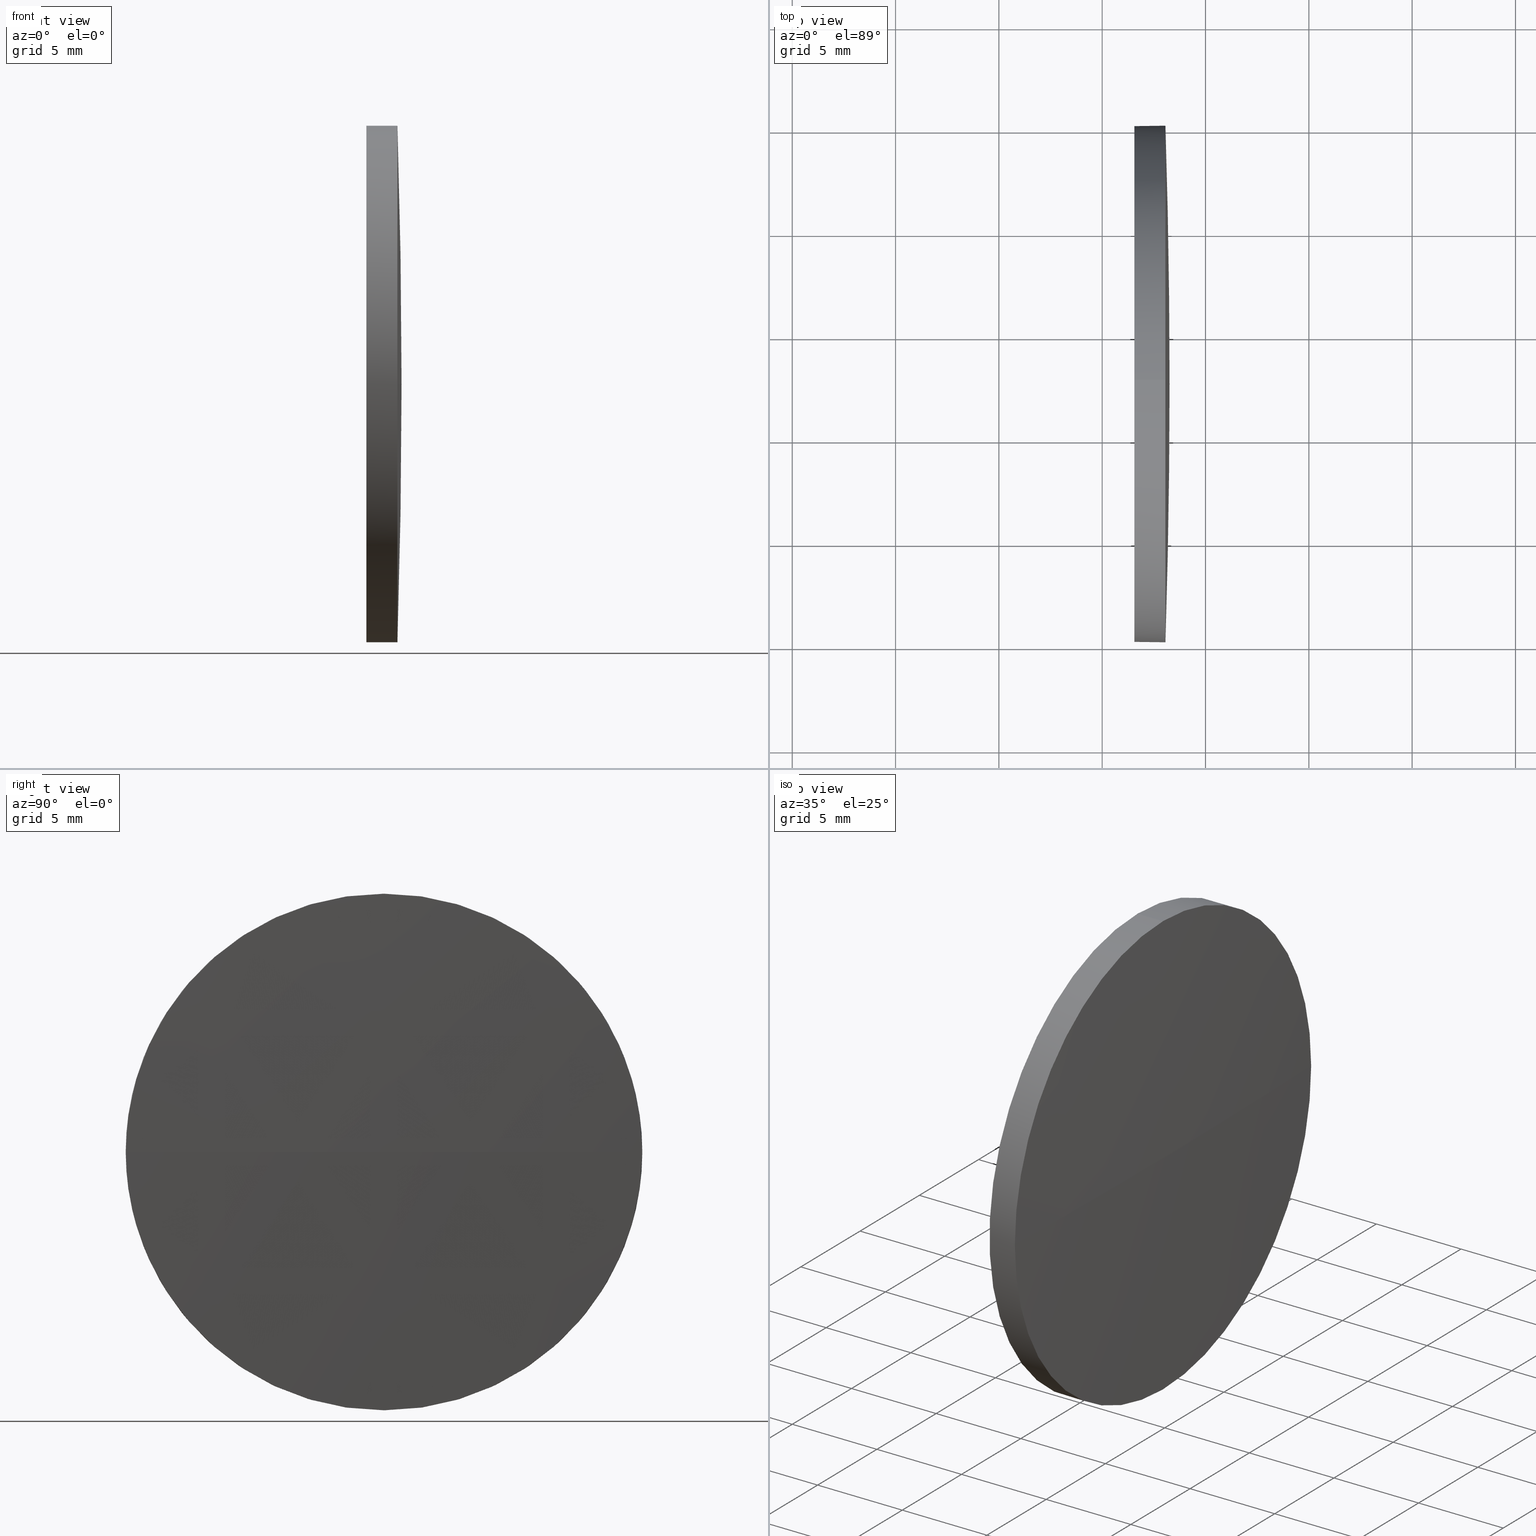
[diagram: canonical four-view strip — front | top / right | iso, engineering-drawing reading convention]
A machine part, canonical four-view strip (front | top / right | iso — engineering-drawing reading convention). The complete STEP part file that produces these views, byte-faithful:
ISO-10303-21;
HEADER;
FILE_DESCRIPTION (( 'STEP AP214' ),
    '1' );
FILE_NAME ('100225.STEP',
    '2019-05-24T03:33:04',
    ( '' ),
    ( '' ),
    'SwSTEP 2.0',
    'SolidWorks 2016',
    '' );
FILE_SCHEMA (( 'AUTOMOTIVE_DESIGN' ));
ENDSEC;

DATA;
#1 = AXIS2_PLACEMENT_3D ( 'NONE', #50, #88, #53 ) ;
#2 = DIRECTION ( 'NONE',  ( 0.0000000000000000000, 0.0000000000000000000, 1.000000000000000000 ) ) ;
#3 = DIRECTION ( 'NONE',  ( 1.000000000000000000, 0.0000000000000000000, 0.0000000000000000000 ) ) ;
#4 = FACE_OUTER_BOUND ( 'NONE', #9, .T. ) ;
#5 = CARTESIAN_POINT ( 'NONE',  ( -332.4649757372895900, 32.62964536423902500, 0.0000000000000000000 ) ) ;
#6 = CARTESIAN_POINT ( 'NONE',  ( 56.56002426272561900, 32.62964536423902500, 0.0000000000000000000 ) ) ;
#7 = DIRECTION ( 'NONE',  ( 0.0000000000000000000, 1.224646799147353200E-016, -1.000000000000000000 ) ) ;
#8 = CIRCLE ( 'NONE', #33, 390.7250000000152000 ) ;
#9 = EDGE_LOOP ( 'NONE', ( #100, #34, #86, #66 ) ) ;
#10 = CARTESIAN_POINT ( 'NONE',  ( 58.06002426272561900, 32.62964536423902500, -12.49999999999999600 ) ) ;
#11 =( GEOMETRIC_REPRESENTATION_CONTEXT ( 3 ) GLOBAL_UNCERTAINTY_ASSIGNED_CONTEXT ( ( #80 ) ) GLOBAL_UNIT_ASSIGNED_CONTEXT ( ( #143, #173, #116 ) ) REPRESENTATION_CONTEXT ( 'NONE', 'WORKASPACE' ) );
#12 = FACE_OUTER_BOUND ( 'NONE', #54, .T. ) ;
#13 = EDGE_CURVE ( 'NONE', #128, #45, #132, .T. ) ;
#14 = ORIENTED_EDGE ( 'NONE', *, *, #154, .T. ) ;
#15 = FACE_OUTER_BOUND ( 'NONE', #21, .T. ) ;
#16 = PRESENTATION_LAYER_ASSIGNMENT (  '', '', ( #183 ) ) ;
#17 = VERTEX_POINT ( 'NONE', #145 ) ;
#18 = DIRECTION ( 'NONE',  ( 0.0000000000000000000, 1.000000000000000000, 0.0000000000000000000 ) ) ;
#19 = CARTESIAN_POINT ( 'NONE',  ( -332.4649757372895900, 32.62964536423902500, 0.0000000000000000000 ) ) ;
#20 = CARTESIAN_POINT ( 'NONE',  ( -332.4649757372895900, 32.62964536423902500, 0.0000000000000000000 ) ) ;
#21 = EDGE_LOOP ( 'NONE', ( #184, #104, #14, #182, #140 ) ) ;
#22 = CARTESIAN_POINT ( 'NONE',  ( 56.56002426272561900, 32.62964536423902500, 0.0000000000000000000 ) ) ;
#23 = AXIS2_PLACEMENT_3D ( 'NONE', #20, #148, #18 ) ;
#24 = CARTESIAN_POINT ( 'NONE',  ( 58.26002426272558700, 32.62964536423904600, 0.0000000000000000000 ) ) ;
#25 = SURFACE_STYLE_USAGE ( .BOTH. , #122 ) ;
#26 = COLOUR_RGB ( '',1.000000000000000000, 1.000000000000000000, 1.000000000000000000 ) ;
#27 = EDGE_CURVE ( 'NONE', #102, #128, #106, .T. ) ;
#28 =( NAMED_UNIT ( * ) SI_UNIT ( $, .STERADIAN. ) SOLID_ANGLE_UNIT ( ) );
#29 = AXIS2_PLACEMENT_3D ( 'NONE', #63, #65, #121 ) ;
#30 = SPHERICAL_SURFACE ( 'NONE', #23, 390.7250000000152000 ) ;
#31 = VERTEX_POINT ( 'NONE', #60 ) ;
#32 = PRODUCT ( '100225', '100225', '', ( #43 ) ) ;
#33 = AXIS2_PLACEMENT_3D ( 'NONE', #5, #7, #137 ) ;
#34 = ORIENTED_EDGE ( 'NONE', *, *, #103, .T. ) ;
#35 = DIRECTION ( 'NONE',  ( -1.000000000000000000, -0.0000000000000000000, -0.0000000000000000000 ) ) ;
#36 = DIRECTION ( 'NONE',  ( 0.0000000000000000000, 1.000000000000000000, 0.0000000000000000000 ) ) ;
#37 = DIRECTION ( 'NONE',  ( 0.0000000000000000000, 0.0000000000000000000, 1.000000000000000000 ) ) ;
#38 = DIRECTION ( 'NONE',  ( -0.0000000000000000000, 0.0000000000000000000, 1.000000000000000000 ) ) ;
#39 = CYLINDRICAL_SURFACE ( 'NONE', #81, 12.49999999999999600 ) ;
#40 = ORIENTED_EDGE ( 'NONE', *, *, #171, .T. ) ;
#41 = AXIS2_PLACEMENT_3D ( 'NONE', #19, #38, #3 ) ;
#42 = SURFACE_STYLE_FILL_AREA ( #167 ) ;
#43 = PRODUCT_CONTEXT ( 'NONE', #91, 'mechanical' ) ;
#44 = SURFACE_STYLE_FILL_AREA ( #186 ) ;
#45 = VERTEX_POINT ( 'NONE', #131 ) ;
#46 = EDGE_CURVE ( 'NONE', #170, #17, #69, .T. ) ;
#47 = MANIFOLD_SOLID_BREP ( '��ת1', #93 ) ;
#48 = CIRCLE ( 'NONE', #1, 12.49999999999999600 ) ;
#49 = AXIS2_PLACEMENT_3D ( 'NONE', #6, #64, #161 ) ;
#50 = CARTESIAN_POINT ( 'NONE',  ( 58.06002426272561900, 32.62964536423902500, 0.0000000000000000000 ) ) ;
#51 = PLANE ( 'NONE',  #49 ) ;
#52 = CARTESIAN_POINT ( 'NONE',  ( -332.4649757372895900, 32.62964536423902500, 0.0000000000000000000 ) ) ;
#53 = DIRECTION ( 'NONE',  ( 0.0000000000000000000, 0.0000000000000000000, 1.000000000000000000 ) ) ;
#54 = EDGE_LOOP ( 'NONE', ( #40, #139 ) ) ;
#55 = CARTESIAN_POINT ( 'NONE',  ( 54.53091668428863400, 32.62964536423902500, 0.0000000000000000000 ) ) ;
#56 = VECTOR ( 'NONE', #75, 1000.000000000000000 ) ;
#57 = ADVANCED_FACE ( 'NONE', ( #15 ), #77, .T. ) ;
#58 = ORIENTED_EDGE ( 'NONE', *, *, #62, .T. ) ;
#59 = LINE ( 'NONE', #136, #56 ) ;
#60 = CARTESIAN_POINT ( 'NONE',  ( 58.06002426272558400, 20.12964536423909200, -1.530808498934183200E-015 ) ) ;
#61 = ORIENTED_EDGE ( 'NONE', *, *, #27, .T. ) ;
#62 = EDGE_CURVE ( 'NONE', #17, #102, #48, .T. ) ;
#63 = CARTESIAN_POINT ( 'NONE',  ( 0.0000000000000000000, 0.0000000000000000000, 0.0000000000000000000 ) ) ;
#64 = DIRECTION ( 'NONE',  ( 1.000000000000000000, 0.0000000000000000000, 0.0000000000000000000 ) ) ;
#65 = DIRECTION ( 'NONE',  ( 0.0000000000000000000, 0.0000000000000000000, 1.000000000000000000 ) ) ;
#66 = ORIENTED_EDGE ( 'NONE', *, *, #62, .F. ) ;
#67 =( LENGTH_UNIT ( ) NAMED_UNIT ( * ) SI_UNIT ( .MILLI., .METRE. ) );
#68 = ORIENTED_EDGE ( 'NONE', *, *, #154, .F. ) ;
#69 = CIRCLE ( 'NONE', #157, 12.49999999999999600 ) ;
#70 = EDGE_CURVE ( 'NONE', #102, #31, #152, .T. ) ;
#71 = CARTESIAN_POINT ( 'NONE',  ( 58.06002426272561900, 32.62964536423902500, 0.0000000000000000000 ) ) ;
#72 = COLOUR_RGB ( '',1.000000000000000000, 1.000000000000000000, 1.000000000000000000 ) ;
#73 = DIRECTION ( 'NONE',  ( -1.000000000000000000, -0.0000000000000000000, -0.0000000000000000000 ) ) ;
#74 = CARTESIAN_POINT ( 'NONE',  ( 58.06002426272561900, 32.62964536423902500, 0.0000000000000000000 ) ) ;
#75 = DIRECTION ( 'NONE',  ( -1.000000000000000000, -0.0000000000000000000, -0.0000000000000000000 ) ) ;
#76 = ORIENTED_EDGE ( 'NONE', *, *, #46, .T. ) ;
#77 = CYLINDRICAL_SURFACE ( 'NONE', #101, 12.49999999999999600 ) ;
#78 =( LENGTH_UNIT ( ) NAMED_UNIT ( * ) SI_UNIT ( .MILLI., .METRE. ) );
#79 = APPLICATION_PROTOCOL_DEFINITION ( 'draft international standard', 'automotive_design', 1998, #91 ) ;
#80 = UNCERTAINTY_MEASURE_WITH_UNIT (LENGTH_MEASURE( 1.000000000000000100E-005 ), #143, 'distance_accuracy_value', 'NONE');
#81 = AXIS2_PLACEMENT_3D ( 'NONE', #118, #133, #146 ) ;
#82 = CARTESIAN_POINT ( 'NONE',  ( 54.53091668428863400, 32.62964536423902500, -12.49999999999999600 ) ) ;
#83 = DIRECTION ( 'NONE',  ( 0.0000000000000000000, 0.0000000000000000000, 1.000000000000000000 ) ) ;
#84 = CARTESIAN_POINT ( 'NONE',  ( 58.06002426272561900, 32.62964536423902500, 12.49999999999999600 ) ) ;
#85 = PRESENTATION_LAYER_ASSIGNMENT (  '', '', ( #150 ) ) ;
#86 = ORIENTED_EDGE ( 'NONE', *, *, #70, .F. ) ;
#87 = DIRECTION ( 'NONE',  ( -1.000000000000000000, -0.0000000000000000000, -0.0000000000000000000 ) ) ;
#88 = DIRECTION ( 'NONE',  ( -1.000000000000000000, -0.0000000000000000000, -0.0000000000000000000 ) ) ;
#89 =( NAMED_UNIT ( * ) PLANE_ANGLE_UNIT ( ) SI_UNIT ( $, .RADIAN. ) );
#90 = EDGE_LOOP ( 'NONE', ( #155, #176, #162, #68 ) ) ;
#91 = APPLICATION_CONTEXT ( 'automotive_design' ) ;
#92 = FACE_OUTER_BOUND ( 'NONE', #90, .T. ) ;
#93 = CLOSED_SHELL ( 'NONE', ( #151, #168, #94, #57, #141 ) ) ;
#94 = ADVANCED_FACE ( 'NONE', ( #92 ), #30, .T. ) ;
#95 = PRODUCT_DEFINITION_CONTEXT ( 'detailed design', #163, 'design' ) ;
#96 = MECHANICAL_DESIGN_GEOMETRIC_PRESENTATION_REPRESENTATION (  '', ( #150 ), #181 ) ;
#97 = CARTESIAN_POINT ( 'NONE',  ( 56.56002426272561900, 32.62964536423902500, 0.0000000000000000000 ) ) ;
#98 = SURFACE_SIDE_STYLE ('',( #44 ) ) ;
#99 = ADVANCED_BREP_SHAPE_REPRESENTATION ( '100225', ( #47, #29 ), #123 ) ;
#100 = ORIENTED_EDGE ( 'NONE', *, *, #164, .F. ) ;
#101 = AXIS2_PLACEMENT_3D ( 'NONE', #55, #73, #37 ) ;
#102 = VERTEX_POINT ( 'NONE', #10 ) ;
#103 = EDGE_CURVE ( 'NONE', #144, #31, #8, .T. ) ;
#104 = ORIENTED_EDGE ( 'NONE', *, *, #70, .T. ) ;
#105 = PRESENTATION_STYLE_ASSIGNMENT (( #25 ) ) ;
#106 = LINE ( 'NONE', #82, #135 ) ;
#107 = PRODUCT_DEFINITION ( 'δ֪', '', #169, #95 ) ;
#108 = CIRCLE ( 'NONE', #160, 12.49999999999999600 ) ;
#109 = ORIENTED_EDGE ( 'NONE', *, *, #113, .F. ) ;
#110 = AXIS2_PLACEMENT_3D ( 'NONE', #52, #177, #36 ) ;
#111 = DIRECTION ( 'NONE',  ( -1.000000000000000000, -0.0000000000000000000, -0.0000000000000000000 ) ) ;
#112 = UNCERTAINTY_MEASURE_WITH_UNIT (LENGTH_MEASURE( 1.000000000000000100E-005 ), #67, 'distance_accuracy_value', 'NONE');
#113 = EDGE_CURVE ( 'NONE', #170, #45, #59, .T. ) ;
#114 = DIRECTION ( 'NONE',  ( -1.000000000000000000, -0.0000000000000000000, -0.0000000000000000000 ) ) ;
#115 = SPHERICAL_SURFACE ( 'NONE', #110, 390.7250000000152000 ) ;
#116 =( NAMED_UNIT ( * ) SI_UNIT ( $, .STERADIAN. ) SOLID_ANGLE_UNIT ( ) );
#117 = DIRECTION ( 'NONE',  ( 0.0000000000000000000, 0.0000000000000000000, 1.000000000000000000 ) ) ;
#118 = CARTESIAN_POINT ( 'NONE',  ( 54.53091668428863400, 32.62964536423902500, 0.0000000000000000000 ) ) ;
#119 = CARTESIAN_POINT ( 'NONE',  ( 58.06002426272561900, 32.62964536423902500, 0.0000000000000000000 ) ) ;
#120 = FACE_OUTER_BOUND ( 'NONE', #149, .T. ) ;
#121 = DIRECTION ( 'NONE',  ( 1.000000000000000000, 0.0000000000000000000, 0.0000000000000000000 ) ) ;
#122 = SURFACE_SIDE_STYLE ('',( #42 ) ) ;
#123 =( GEOMETRIC_REPRESENTATION_CONTEXT ( 3 ) GLOBAL_UNCERTAINTY_ASSIGNED_CONTEXT ( ( #130 ) ) GLOBAL_UNIT_ASSIGNED_CONTEXT ( ( #78, #138, #165 ) ) REPRESENTATION_CONTEXT ( 'NONE', 'WORKASPACE' ) );
#124 = PRODUCT_DEFINITION_SHAPE ( 'NONE', 'NONE',  #107 ) ;
#125 = APPLICATION_PROTOCOL_DEFINITION ( 'draft international standard', 'automotive_design', 1998, #163 ) ;
#126 = SHAPE_DEFINITION_REPRESENTATION ( #124, #99 ) ;
#127 = MECHANICAL_DESIGN_GEOMETRIC_PRESENTATION_REPRESENTATION (  '', ( #183 ), #11 ) ;
#128 = VERTEX_POINT ( 'NONE', #147 ) ;
#129 = SURFACE_STYLE_USAGE ( .BOTH. , #98 ) ;
#130 = UNCERTAINTY_MEASURE_WITH_UNIT (LENGTH_MEASURE( 1.000000000000000100E-005 ), #78, 'distance_accuracy_value', 'NONE');
#131 = CARTESIAN_POINT ( 'NONE',  ( 56.56002426272561900, 32.62964536423902500, 12.49999999999999600 ) ) ;
#132 = CIRCLE ( 'NONE', #174, 12.49999999999999600 ) ;
#133 = DIRECTION ( 'NONE',  ( -1.000000000000000000, -0.0000000000000000000, -0.0000000000000000000 ) ) ;
#134 = FILL_AREA_STYLE_COLOUR ( '', #72 ) ;
#135 = VECTOR ( 'NONE', #114, 1000.000000000000000 ) ;
#136 = CARTESIAN_POINT ( 'NONE',  ( 54.53091668428863400, 32.62964536423902500, 12.49999999999999600 ) ) ;
#137 = DIRECTION ( 'NONE',  ( 0.0000000000000000000, 1.000000000000000000, 1.224646799147353200E-016 ) ) ;
#138 =( NAMED_UNIT ( * ) PLANE_ANGLE_UNIT ( ) SI_UNIT ( $, .RADIAN. ) );
#139 = ORIENTED_EDGE ( 'NONE', *, *, #13, .T. ) ;
#140 = ORIENTED_EDGE ( 'NONE', *, *, #13, .F. ) ;
#141 = ADVANCED_FACE ( 'NONE', ( #12 ), #51, .F. ) ;
#142 = CIRCLE ( 'NONE', #41, 390.7250000000152000 ) ;
#143 =( LENGTH_UNIT ( ) NAMED_UNIT ( * ) SI_UNIT ( .MILLI., .METRE. ) );
#144 = VERTEX_POINT ( 'NONE', #24 ) ;
#145 = CARTESIAN_POINT ( 'NONE',  ( 58.06002426272558400, 45.12964536423896100, 0.0000000000000000000 ) ) ;
#146 = DIRECTION ( 'NONE',  ( 0.0000000000000000000, 0.0000000000000000000, 1.000000000000000000 ) ) ;
#147 = CARTESIAN_POINT ( 'NONE',  ( 56.56002426272561900, 32.62964536423902500, -12.49999999999999600 ) ) ;
#148 = DIRECTION ( 'NONE',  ( -0.0000000000000000000, 0.0000000000000000000, -1.000000000000000000 ) ) ;
#149 = EDGE_LOOP ( 'NONE', ( #58, #61, #179, #109, #76 ) ) ;
#150 = STYLED_ITEM ( 'NONE', ( #105 ), #99 ) ;
#151 = ADVANCED_FACE ( 'NONE', ( #120 ), #39, .T. ) ;
#152 = CIRCLE ( 'NONE', #178, 12.49999999999999600 ) ;
#153 = DIRECTION ( 'NONE',  ( 0.0000000000000000000, 0.0000000000000000000, 1.000000000000000000 ) ) ;
#154 = EDGE_CURVE ( 'NONE', #31, #170, #108, .T. ) ;
#155 = ORIENTED_EDGE ( 'NONE', *, *, #103, .F. ) ;
#156 = FILL_AREA_STYLE_COLOUR ( '', #26 ) ;
#157 = AXIS2_PLACEMENT_3D ( 'NONE', #71, #175, #2 ) ;
#158 = DIRECTION ( 'NONE',  ( 0.0000000000000000000, 0.0000000000000000000, 1.000000000000000000 ) ) ;
#159 = DIRECTION ( 'NONE',  ( -1.000000000000000000, -0.0000000000000000000, -0.0000000000000000000 ) ) ;
#160 = AXIS2_PLACEMENT_3D ( 'NONE', #74, #159, #158 ) ;
#161 = DIRECTION ( 'NONE',  ( 0.0000000000000000000, 0.0000000000000000000, -1.000000000000000000 ) ) ;
#162 = ORIENTED_EDGE ( 'NONE', *, *, #46, .F. ) ;
#163 = APPLICATION_CONTEXT ( 'automotive_design' ) ;
#164 = EDGE_CURVE ( 'NONE', #144, #17, #142, .T. ) ;
#165 =( NAMED_UNIT ( * ) SI_UNIT ( $, .STERADIAN. ) SOLID_ANGLE_UNIT ( ) );
#166 = PRESENTATION_STYLE_ASSIGNMENT (( #129 ) ) ;
#167 = FILL_AREA_STYLE ('',( #134 ) ) ;
#168 = ADVANCED_FACE ( 'NONE', ( #4 ), #115, .T. ) ;
#169 = PRODUCT_DEFINITION_FORMATION_WITH_SPECIFIED_SOURCE ( '�κ�', '', #32, .NOT_KNOWN. ) ;
#170 = VERTEX_POINT ( 'NONE', #84 ) ;
#171 = EDGE_CURVE ( 'NONE', #45, #128, #180, .T. ) ;
#172 = AXIS2_PLACEMENT_3D ( 'NONE', #22, #87, #83 ) ;
#173 =( NAMED_UNIT ( * ) PLANE_ANGLE_UNIT ( ) SI_UNIT ( $, .RADIAN. ) );
#174 = AXIS2_PLACEMENT_3D ( 'NONE', #97, #111, #153 ) ;
#175 = DIRECTION ( 'NONE',  ( -1.000000000000000000, -0.0000000000000000000, -0.0000000000000000000 ) ) ;
#176 = ORIENTED_EDGE ( 'NONE', *, *, #164, .T. ) ;
#177 = DIRECTION ( 'NONE',  ( -0.0000000000000000000, 0.0000000000000000000, -1.000000000000000000 ) ) ;
#178 = AXIS2_PLACEMENT_3D ( 'NONE', #119, #35, #117 ) ;
#179 = ORIENTED_EDGE ( 'NONE', *, *, #171, .F. ) ;
#180 = CIRCLE ( 'NONE', #172, 12.49999999999999600 ) ;
#181 =( GEOMETRIC_REPRESENTATION_CONTEXT ( 3 ) GLOBAL_UNCERTAINTY_ASSIGNED_CONTEXT ( ( #112 ) ) GLOBAL_UNIT_ASSIGNED_CONTEXT ( ( #67, #89, #28 ) ) REPRESENTATION_CONTEXT ( 'NONE', 'WORKASPACE' ) );
#182 = ORIENTED_EDGE ( 'NONE', *, *, #113, .T. ) ;
#183 = STYLED_ITEM ( 'NONE', ( #166 ), #47 ) ;
#184 = ORIENTED_EDGE ( 'NONE', *, *, #27, .F. ) ;
#185 = PRODUCT_RELATED_PRODUCT_CATEGORY ( 'part', '', ( #32 ) ) ;
#186 = FILL_AREA_STYLE ('',( #156 ) ) ;
ENDSEC;
END-ISO-10303-21;
